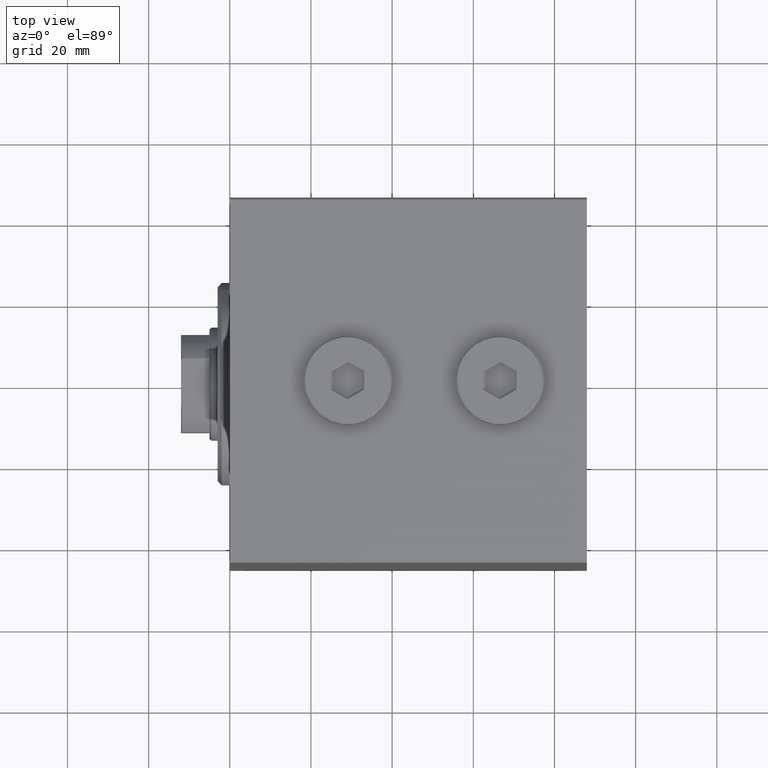
[diagram: clean part render]
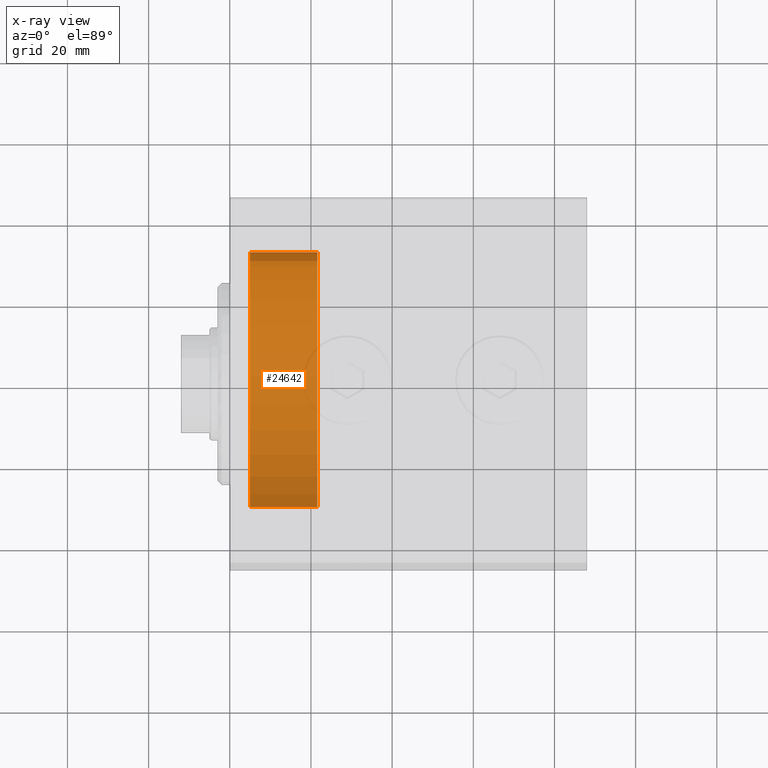
[diagram: x-ray — body ghosted, one internal face saturated and labeled with its STEP entity id]
A machine part, top view, then the same camera in x-ray: the body is ghosted and one INTERNAL B-rep face — a face not visible from any outside direction — is saturated and labeled: STEP entity #24642.
In plain terms, the highlighted cylindrical surface (partial cylindrical patch) has radius 32.5 mm, axis along (-1, 0, 0).
Its self-contained STEP definition (entity closure, byte-faithful):
#50 = AXIS2_PLACEMENT_3D ( 'NONE', #35974, #25916, #39841 ) ;
#1388 = EDGE_CURVE ( 'NONE', #12266, #10722, #6494, .T. ) ;
#2404 = CARTESIAN_POINT ( 'NONE',  ( -21.60000000000000142, 3.980102097228897837E-15, 32.50000000000000000 ) ) ;
#3041 = DIRECTION ( 'NONE',  ( -1.000000000000000000, 0.000000000000000000, 0.000000000000000000 ) ) ;
#4516 = DIRECTION ( 'NONE',  ( 0.000000000000000000, 0.000000000000000000, 1.000000000000000000 ) ) ;
#6494 = LINE ( 'NONE', #2404, #32087 ) ;
#7588 = AXIS2_PLACEMENT_3D ( 'NONE', #21253, #3041, #13720 ) ;
#8368 = VERTEX_POINT ( 'NONE', #15327 ) ;
#8577 = FACE_OUTER_BOUND ( 'NONE', #12765, .T. ) ;
#9397 = LINE ( 'NONE', #37698, #40101 ) ;
#9733 = VERTEX_POINT ( 'NONE', #37706 ) ;
#10722 = VERTEX_POINT ( 'NONE', #14173 ) ;
#12266 = VERTEX_POINT ( 'NONE', #15867 ) ;
#12706 = CIRCLE ( 'NONE', #37540, 32.50000000000000000 ) ;
#12765 = EDGE_LOOP ( 'NONE', ( #23784, #22970, #44171, #41225 ) ) ;
#13720 = DIRECTION ( 'NONE',  ( 0.000000000000000000, 0.000000000000000000, 1.000000000000000000 ) ) ;
#14173 = CARTESIAN_POINT ( 'NONE',  ( -5.000000000000000000, 3.980102097228897837E-15, 32.50000000000000000 ) ) ;
#15327 = CARTESIAN_POINT ( 'NONE',  ( -21.60000000000000142, 0.000000000000000000, -32.50000000000000000 ) ) ;
#15631 = EDGE_CURVE ( 'NONE', #12266, #8368, #17800, .T. ) ;
#15867 = CARTESIAN_POINT ( 'NONE',  ( -21.60000000000000142, 3.980102097228897837E-15, 32.50000000000000000 ) ) ;
#16067 = CYLINDRICAL_SURFACE ( 'NONE', #50, 32.50000000000000000 ) ;
#16744 = DIRECTION ( 'NONE',  ( 1.000000000000000000, -0.000000000000000000, -0.000000000000000000 ) ) ;
#16905 = DIRECTION ( 'NONE',  ( 1.000000000000000000, -0.000000000000000000, -0.000000000000000000 ) ) ;
#17800 = CIRCLE ( 'NONE', #7588, 32.50000000000000000 ) ;
#18649 = DIRECTION ( 'NONE',  ( -1.000000000000000000, 0.000000000000000000, 0.000000000000000000 ) ) ;
#21253 = CARTESIAN_POINT ( 'NONE',  ( -21.60000000000000142, 0.000000000000000000, 0.000000000000000000 ) ) ;
#22970 = ORIENTED_EDGE ( 'NONE', *, *, #1388, .T. ) ;
#23784 = ORIENTED_EDGE ( 'NONE', *, *, #15631, .F. ) ;
#24642 = ADVANCED_FACE ( 'NONE', ( #8577 ), #16067, .T. ) ;
#25916 = DIRECTION ( 'NONE',  ( 1.000000000000000000, -0.000000000000000000, -0.000000000000000000 ) ) ;
#28654 = EDGE_CURVE ( 'NONE', #8368, #9733, #9397, .T. ) ;
#29353 = CARTESIAN_POINT ( 'NONE',  ( -5.000000000000000000, 0.000000000000000000, 0.000000000000000000 ) ) ;
#32087 = VECTOR ( 'NONE', #16744, 1000.000000000000000 ) ;
#35974 = CARTESIAN_POINT ( 'NONE',  ( -21.60000000000000142, 0.000000000000000000, 0.000000000000000000 ) ) ;
#37540 = AXIS2_PLACEMENT_3D ( 'NONE', #29353, #18649, #4516 ) ;
#37698 = CARTESIAN_POINT ( 'NONE',  ( -21.60000000000000142, 0.000000000000000000, -32.50000000000000000 ) ) ;
#37706 = CARTESIAN_POINT ( 'NONE',  ( -5.000000000000000000, 0.000000000000000000, -32.50000000000000000 ) ) ;
#39841 = DIRECTION ( 'NONE',  ( 0.000000000000000000, 0.000000000000000000, -1.000000000000000000 ) ) ;
#40101 = VECTOR ( 'NONE', #16905, 1000.000000000000000 ) ;
#41225 = ORIENTED_EDGE ( 'NONE', *, *, #28654, .F. ) ;
#41645 = EDGE_CURVE ( 'NONE', #10722, #9733, #12706, .T. ) ;
#44171 = ORIENTED_EDGE ( 'NONE', *, *, #41645, .T. ) ;